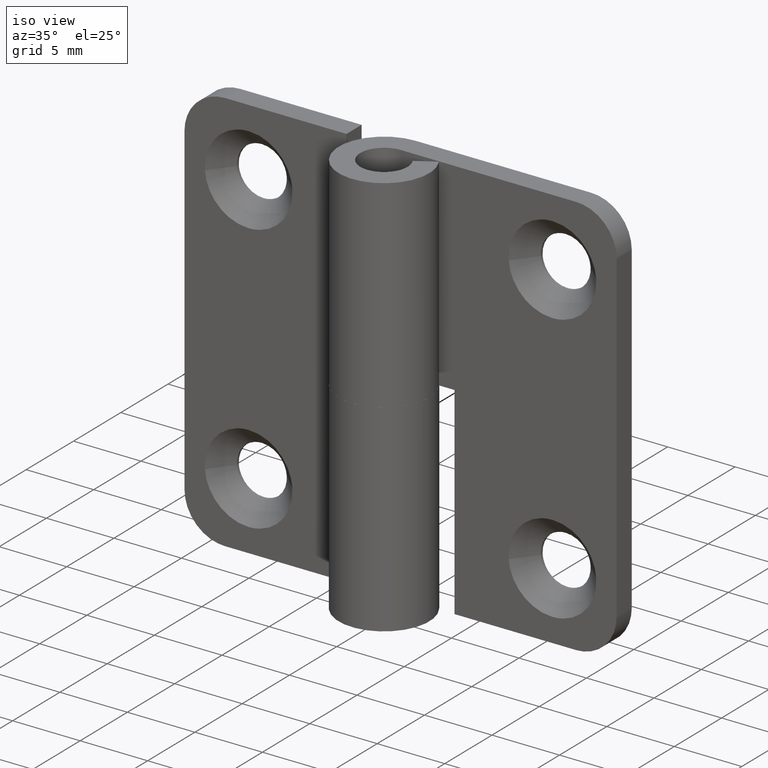
[diagram: clean part render]
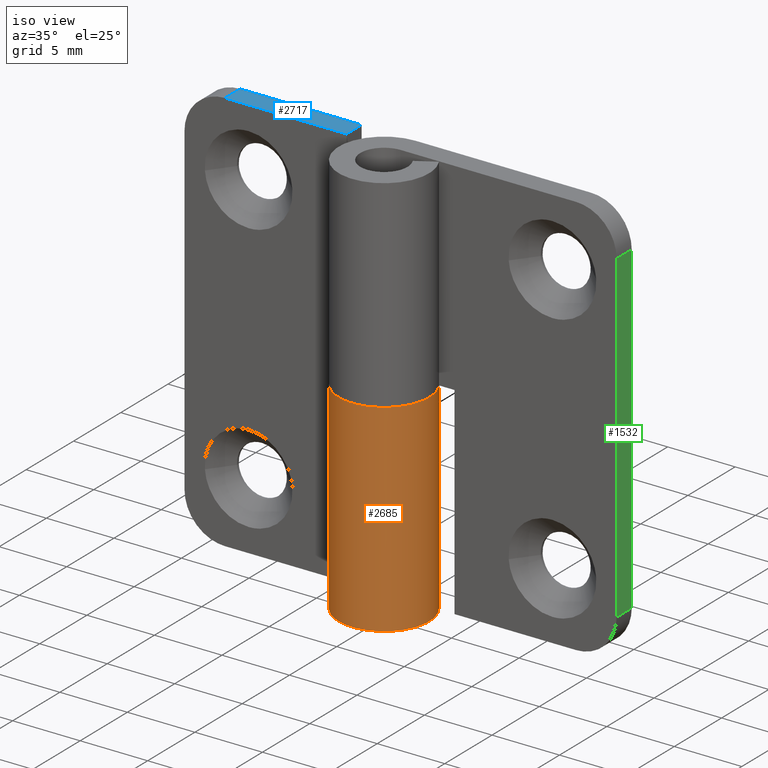
[diagram: same view with three faces highlighted in distinct colors, each labeled with its STEP entity id]
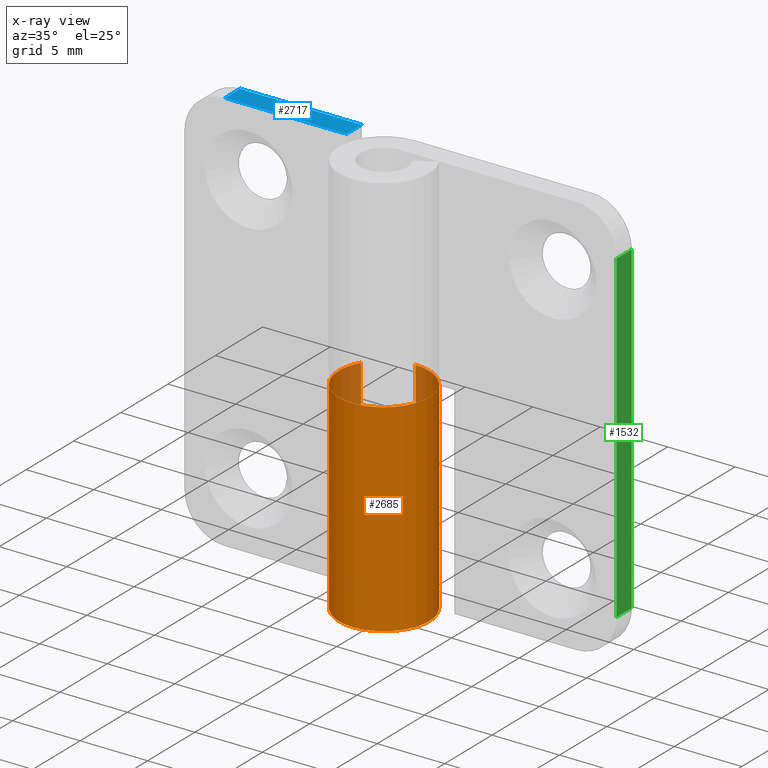
[diagram: x-ray of the same camera — body ghosted, the three highlighted faces saturated]
A machine part, iso view with three faces highlighted in distinct colors.
The next image is the same camera in x-ray (body ghosted, the three faces saturated) — at least one of them is partly hidden behind the body in this view.
Their STEP definitions:

[orange] entity #2685 — the highlighted face is a freeform B-spline surface patch.
#2327=CARTESIAN_POINT('',(-2.886607004772210,1.700000000000000,15.0));
#2328=VERTEX_POINT('',#2327);
#2329=CARTESIAN_POINT('',(0.0,3.349998000000000,15.0));
#2330=VERTEX_POINT('',#2329);
#2331=CARTESIAN_POINT('',(-2.886607004772210,1.700000000000000,15.0));
#2332=CARTESIAN_POINT('',(-4.193981925234299,-0.519926656512254,14.999999999999996));
#2333=CARTESIAN_POINT('',(-2.384105665795275,-2.353409380953166,15.0));
#2334=CARTESIAN_POINT('',(-0.574229406356250,-4.186892105394079,14.999999999999996));
#2335=CARTESIAN_POINT('',(1.662453006854632,-2.908394027085576,15.0));
#2336=CARTESIAN_POINT('',(3.899135420065510,-1.629895948777075,14.999999999999996));
#2337=CARTESIAN_POINT('',(3.237716528723343,0.860050352906007,15.0));
#2338=CARTESIAN_POINT('',(2.576297637381175,3.349996654589091,14.999999999999996));
#2339=CARTESIAN_POINT('',(0.0,3.349998000000000,15.0));
#2347=(BOUNDED_CURVE()B_SPLINE_CURVE(2,(#2331,#2332,#2333,#2334,#2335,#2336,#2337,#2338,#2339),.UNSPECIFIED.,.F.,.U.)B_SPLINE_CURVE_WITH_KNOTS((3,2,2,2,3),(0.0,0.250000000000000,0.500000000000000,0.750000000000000,1.0),.UNSPECIFIED.)CURVE()GEOMETRIC_REPRESENTATION_ITEM()RATIONAL_B_SPLINE_CURVE((1.0,0.792695505378780,1.0,0.792695505378780,1.0,0.792695505378780,1.0,0.792695505378780,1.0))REPRESENTATION_ITEM(''));
#2348=EDGE_CURVE('',#2328,#2330,#2347,.T.);
#2350=CARTESIAN_POINT('',(-0.003660600497906,3.349998000000000,15.0));
#2351=VERTEX_POINT('',#2350);
#2352=CARTESIAN_POINT('',(0.0,3.349998000000000,15.0));
#2353=CARTESIAN_POINT('',(-0.003660600497906,3.349998000000000,15.0));
#2354=QUASI_UNIFORM_CURVE('',1,(#2352,#2353),.UNSPECIFIED.,.F.,.U.);
#2355=EDGE_CURVE('',#2330,#2351,#2354,.T.);
#2534=CARTESIAN_POINT('',(-0.003660600497906,3.349998000000000,0.0));
#2535=VERTEX_POINT('',#2534);
#2541=CARTESIAN_POINT('',(-2.886607004772210,1.700000000000000,0.0));
#2542=VERTEX_POINT('',#2541);
#2543=CARTESIAN_POINT('',(-0.003660600497908,3.349997999999999,0.0));
#2544=CARTESIAN_POINT('',(2.573363773134647,3.352813958906613,0.0));
#2545=CARTESIAN_POINT('',(3.237010595501925,0.862706441733380,0.0));
#2546=CARTESIAN_POINT('',(3.900657417869203,-1.627401075439853,0.0));
#2547=CARTESIAN_POINT('',(1.664041783585816,-2.907484297890624,0.0));
#2548=CARTESIAN_POINT('',(-0.572573850697571,-4.187567520341395,0.0));
#2549=CARTESIAN_POINT('',(-2.383462674102702,-2.354061528753910,0.0));
#2550=CARTESIAN_POINT('',(-4.194351497507832,-0.520555537166425,0.0));
#2551=CARTESIAN_POINT('',(-2.886607004772211,1.700000000000002,0.0));
#2559=(BOUNDED_CURVE()B_SPLINE_CURVE(2,(#2543,#2544,#2545,#2546,#2547,#2548,#2549,#2550,#2551),.UNSPECIFIED.,.F.,.U.)B_SPLINE_CURVE_WITH_KNOTS((3,2,2,2,3),(0.0,0.250000000000000,0.500000000000000,0.750000000000000,1.0),.UNSPECIFIED.)CURVE()GEOMETRIC_REPRESENTATION_ITEM()RATIONAL_B_SPLINE_CURVE((1.0,0.792612230537205,1.0,0.792612230537205,1.0,0.792612230537205,1.0,0.792612230537205,1.0))REPRESENTATION_ITEM(''));
#2560=EDGE_CURVE('',#2535,#2542,#2559,.T.);
#2648=CARTESIAN_POINT('',(-0.091352070579024,3.348754216003456,-0.375000000000000));
#2649=CARTESIAN_POINT('',(-0.091352070579024,3.348754216003456,15.384375000000000));
#2650=CARTESIAN_POINT('',(4.019506883318362,3.460896061320795,-0.375000000000001));
#2651=CARTESIAN_POINT('',(4.019506883318362,3.460896061320795,15.384375000000002));
#2652=CARTESIAN_POINT('',(3.298044029980831,-0.587712154296463,-0.375000000000000));
#2653=CARTESIAN_POINT('',(3.298044029980831,-0.587712154296463,15.384375000000000));
#2654=CARTESIAN_POINT('',(2.576581176643302,-4.636320369913719,-0.375000000000001));
#2655=CARTESIAN_POINT('',(2.576581176643302,-4.636320369913719,15.384375000000002));
#2656=CARTESIAN_POINT('',(-1.242492843794762,-3.111062765859730,-0.375000000000000));
#2657=CARTESIAN_POINT('',(-1.242492843794762,-3.111062765859730,15.384375000000000));
#2658=CARTESIAN_POINT('',(-5.061566864232827,-1.585805161805742,-0.375000000000001));
#2659=CARTESIAN_POINT('',(-5.061566864232827,-1.585805161805742,15.384375000000002));
#2660=CARTESIAN_POINT('',(-2.795536256956618,1.845935274065959,-0.375000000000000));
#2661=CARTESIAN_POINT('',(-2.795536256956618,1.845935274065959,15.384375000000000));
#2669=(BOUNDED_SURFACE()B_SPLINE_SURFACE(1,2,((#2648,#2650,#2652,#2654,#2656,#2658,#2660),(#2649,#2651,#2653,#2655,#2657,#2659,#2661)),.UNSPECIFIED.,.F.,.F.,.U.)B_SPLINE_SURFACE_WITH_KNOTS((2,2),(3,2,2,3),(0.0,15.759375000000000),(0.0,6.367565222520818,12.735130445041641,19.102695667562450),.UNSPECIFIED.)GEOMETRIC_REPRESENTATION_ITEM()RATIONAL_B_SPLINE_SURFACE(((1.0,0.631578351302498,1.0,0.631578351302498,1.0,0.631578351302498,1.0),(1.0,0.631578351302498,1.0,0.631578351302498,1.0,0.631578351302498,1.0)))REPRESENTATION_ITEM('')SURFACE());
#2670=ORIENTED_EDGE('',*,*,#2355,.F.);
#2671=ORIENTED_EDGE('',*,*,#2348,.F.);
#2672=CARTESIAN_POINT('',(-2.886607004772210,1.700000000000000,0.0));
#2673=CARTESIAN_POINT('',(-2.886607004772210,1.700000000000000,15.0));
#2674=QUASI_UNIFORM_CURVE('',1,(#2672,#2673),.UNSPECIFIED.,.F.,.U.);
#2675=EDGE_CURVE('',#2542,#2328,#2674,.T.);
#2676=ORIENTED_EDGE('',*,*,#2675,.F.);
#2677=ORIENTED_EDGE('',*,*,#2560,.F.);
#2678=CARTESIAN_POINT('',(-0.003660600497906,3.349998000000000,0.0));
#2679=CARTESIAN_POINT('',(-0.003660600497906,3.349998000000000,15.0));
#2680=QUASI_UNIFORM_CURVE('',1,(#2678,#2679),.UNSPECIFIED.,.F.,.U.);
#2681=EDGE_CURVE('',#2535,#2351,#2680,.T.);
#2682=ORIENTED_EDGE('',*,*,#2681,.T.);
#2683=EDGE_LOOP('',(#2670,#2671,#2676,#2677,#2682));
#2684=FACE_OUTER_BOUND('',#2683,.T.);
#2685=ADVANCED_FACE('',(#2684),#2669,.T.);

[blue] entity #2717 — the highlighted face is a freeform B-spline surface patch.
#2300=CARTESIAN_POINT('',(-4.0,3.349998000000000,30.000008000000001));
#2301=VERTEX_POINT('',#2300);
#2307=CARTESIAN_POINT('',(-4.0,1.750000000000030,30.000008000000001));
#2308=VERTEX_POINT('',#2307);
#2309=CARTESIAN_POINT('',(-4.0,3.349998000000000,30.000008000000001));
#2310=CARTESIAN_POINT('',(-4.0,1.750000000000030,30.000008000000001));
#2311=QUASI_UNIFORM_CURVE('',1,(#2309,#2310),.UNSPECIFIED.,.F.,.U.);
#2312=EDGE_CURVE('',#2301,#2308,#2311,.T.);
#2413=CARTESIAN_POINT('',(-13.0,1.750000000000000,30.000008000000001));
#2414=VERTEX_POINT('',#2413);
#2430=CARTESIAN_POINT('',(-13.0,3.349998000000000,30.000008000000001));
#2431=VERTEX_POINT('',#2430);
#2432=CARTESIAN_POINT('',(-13.0,3.349998000000000,30.000008000000001));
#2433=CARTESIAN_POINT('',(-13.0,1.750000000000000,30.000008000000001));
#2434=QUASI_UNIFORM_CURVE('',1,(#2432,#2433),.UNSPECIFIED.,.F.,.U.);
#2435=EDGE_CURVE('',#2431,#2414,#2434,.T.);
#2698=CARTESIAN_POINT('',(-13.449549982556251,1.670080103001107,30.000008000000001));
#2699=CARTESIAN_POINT('',(-3.550449776044936,1.670080103001107,30.000008000000001));
#2700=CARTESIAN_POINT('',(-13.449549982556251,3.429917939914184,30.000008000000001));
#2701=CARTESIAN_POINT('',(-3.550449776044936,3.429917939914184,30.000008000000001));
#2702=B_SPLINE_SURFACE_WITH_KNOTS('',1,1,((#2698,#2700),(#2699,#2701)),.UNSPECIFIED.,.F.,.F.,.U.,(2,2),(2,2),(0.0,9.899100206511319),(0.041708334948495,0.958291687403247),.UNSPECIFIED.);
#2703=ORIENTED_EDGE('',*,*,#2312,.F.);
#2704=CARTESIAN_POINT('',(-4.0,3.349998000000000,30.000008000000001));
#2705=CARTESIAN_POINT('',(-13.0,3.349998000000000,30.000008000000001));
#2706=QUASI_UNIFORM_CURVE('',1,(#2704,#2705),.UNSPECIFIED.,.F.,.U.);
#2707=EDGE_CURVE('',#2301,#2431,#2706,.T.);
#2708=ORIENTED_EDGE('',*,*,#2707,.T.);
#2709=ORIENTED_EDGE('',*,*,#2435,.T.);
#2710=CARTESIAN_POINT('',(-13.0,1.750000000000000,30.000008000000001));
#2711=CARTESIAN_POINT('',(-4.0,1.750000000000030,30.000008000000001));
#2712=QUASI_UNIFORM_CURVE('',1,(#2710,#2711),.UNSPECIFIED.,.F.,.U.);
#2713=EDGE_CURVE('',#2414,#2308,#2712,.T.);
#2714=ORIENTED_EDGE('',*,*,#2713,.T.);
#2715=EDGE_LOOP('',(#2703,#2708,#2709,#2714));
#2716=FACE_OUTER_BOUND('',#2715,.T.);
#2717=ADVANCED_FACE('',(#2716),#2702,.T.);

[green] entity #1532 — the highlighted face is a freeform B-spline surface patch.
#1228=CARTESIAN_POINT('',(16.0,1.750000000000030,27.000008000000001));
#1229=VERTEX_POINT('',#1228);
#1245=CARTESIAN_POINT('',(16.0,3.349998000000000,27.000008000000001));
#1246=VERTEX_POINT('',#1245);
#1247=CARTESIAN_POINT('',(16.0,3.349998000000000,27.000008000000001));
#1248=CARTESIAN_POINT('',(16.0,1.750000000000030,27.000008000000001));
#1249=QUASI_UNIFORM_CURVE('',1,(#1247,#1248),.UNSPECIFIED.,.F.,.U.);
#1250=EDGE_CURVE('',#1246,#1229,#1249,.T.);
#1291=CARTESIAN_POINT('',(16.0,1.750000000000030,3.0));
#1292=VERTEX_POINT('',#1291);
#1313=CARTESIAN_POINT('',(16.0,3.349998000000000,3.0));
#1314=VERTEX_POINT('',#1313);
#1328=CARTESIAN_POINT('',(16.0,3.349998000000000,3.0));
#1329=CARTESIAN_POINT('',(16.0,1.750000000000030,3.0));
#1330=QUASI_UNIFORM_CURVE('',1,(#1328,#1329),.UNSPECIFIED.,.F.,.U.);
#1331=EDGE_CURVE('',#1314,#1292,#1330,.T.);
#1513=CARTESIAN_POINT('',(16.0,1.670080103001138,28.198808127788428));
#1514=CARTESIAN_POINT('',(16.0,1.670080103001138,1.801199013904408));
#1515=CARTESIAN_POINT('',(16.0,3.429917939914183,28.198808127788428));
#1516=CARTESIAN_POINT('',(16.0,3.429917939914183,1.801199013904408));
#1517=B_SPLINE_SURFACE_WITH_KNOTS('',1,1,((#1513,#1515),(#1514,#1516)),.UNSPECIFIED.,.F.,.F.,.U.,(2,2),(2,2),(0.0,26.397609113884020),(0.041708334948495,0.958291687403247),.UNSPECIFIED.);
#1518=CARTESIAN_POINT('',(16.0,3.349998000000000,3.0));
#1519=CARTESIAN_POINT('',(16.0,3.349998000000000,27.000008000000001));
#1520=QUASI_UNIFORM_CURVE('',1,(#1518,#1519),.UNSPECIFIED.,.F.,.U.);
#1521=EDGE_CURVE('',#1314,#1246,#1520,.T.);
#1522=ORIENTED_EDGE('',*,*,#1521,.T.);
#1523=ORIENTED_EDGE('',*,*,#1250,.T.);
#1524=CARTESIAN_POINT('',(16.0,1.750000000000030,3.0));
#1525=CARTESIAN_POINT('',(16.0,1.750000000000030,27.000008000000001));
#1526=QUASI_UNIFORM_CURVE('',1,(#1524,#1525),.UNSPECIFIED.,.F.,.U.);
#1527=EDGE_CURVE('',#1292,#1229,#1526,.T.);
#1528=ORIENTED_EDGE('',*,*,#1527,.F.);
#1529=ORIENTED_EDGE('',*,*,#1331,.F.);
#1530=EDGE_LOOP('',(#1522,#1523,#1528,#1529));
#1531=FACE_OUTER_BOUND('',#1530,.T.);
#1532=ADVANCED_FACE('',(#1531),#1517,.T.);